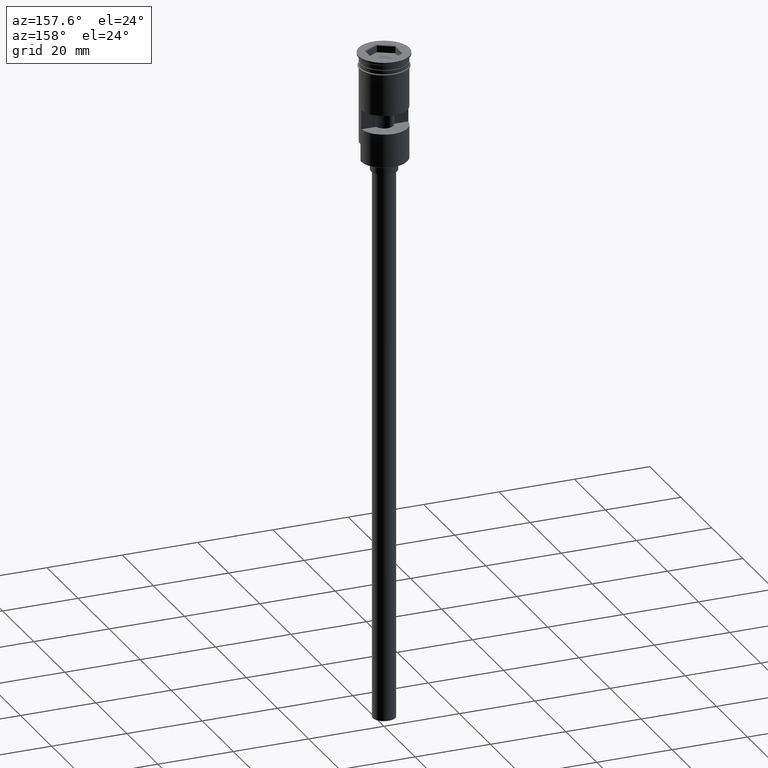
[diagram: clean part render]
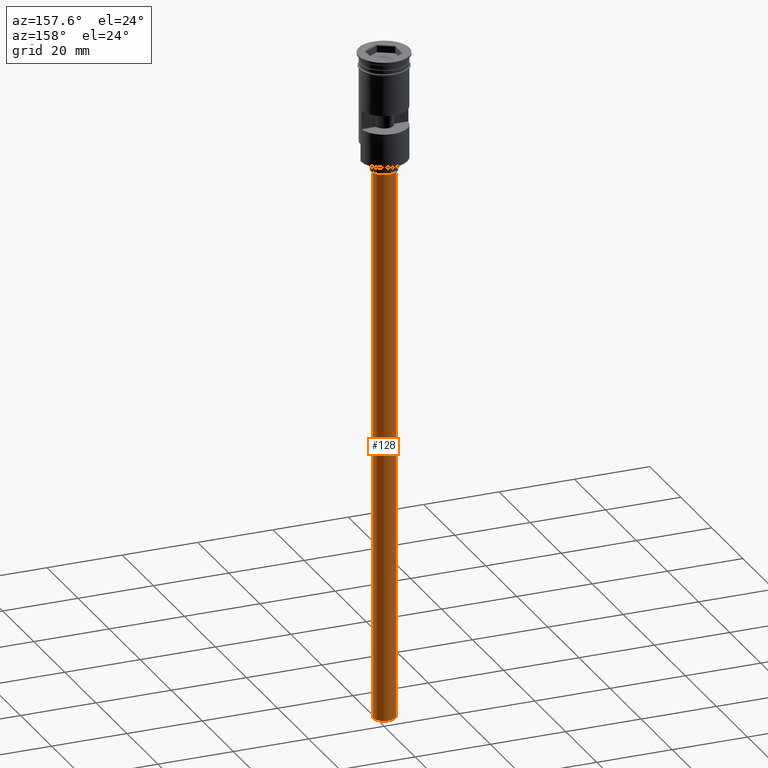
[diagram: same view with one face highlighted and labeled with its STEP entity id]
A machine part, auxiliary view. The second image highlights one B-rep face of the part: STEP entity #128.
In plain terms, the highlighted cylindrical surface (edge-blend (fillet) strip) has radius 3 mm, axis along (-0, -0, 1).
Its self-contained STEP definition (entity closure, byte-faithful):
#8 = CARTESIAN_POINT ( 'NONE',  ( 0.000000000000000000, 0.000000000000000000, -178.5000000000000000 ) ) ;
#35 = ORIENTED_EDGE ( 'NONE', *, *, #1269, .F. ) ;
#85 = CARTESIAN_POINT ( 'NONE',  ( 0.000000000000000000, 0.000000000000000000, -178.5000000000000000 ) ) ;
#128 = ADVANCED_FACE ( 'NONE', ( #248 ), #1468, .T. ) ;
#135 = CARTESIAN_POINT ( 'NONE',  ( 0.000000000000000000, 0.000000000000000000, -31.50000000000000000 ) ) ;
#183 = CARTESIAN_POINT ( 'NONE',  ( -3.000000000000000444, 3.673940397442060361E-16, -31.50000000000000000 ) ) ;
#184 = ORIENTED_EDGE ( 'NONE', *, *, #845, .T. ) ;
#210 = LINE ( 'NONE', #815, #626 ) ;
#247 = DIRECTION ( 'NONE',  ( -1.000000000000000000, 0.000000000000000000, 0.000000000000000000 ) ) ;
#248 = FACE_OUTER_BOUND ( 'NONE', #414, .T. ) ;
#279 = EDGE_CURVE ( 'NONE', #492, #420, #706, .T. ) ;
#371 = AXIS2_PLACEMENT_3D ( 'NONE', #8, #860, #494 ) ;
#414 = EDGE_LOOP ( 'NONE', ( #35, #184, #529, #572 ) ) ;
#420 = VERTEX_POINT ( 'NONE', #725 ) ;
#443 = DIRECTION ( 'NONE',  ( -1.000000000000000000, 0.000000000000000000, 0.000000000000000000 ) ) ;
#448 = DIRECTION ( 'NONE',  ( 0.000000000000000000, 0.000000000000000000, -1.000000000000000000 ) ) ;
#492 = VERTEX_POINT ( 'NONE', #747 ) ;
#494 = DIRECTION ( 'NONE',  ( 1.000000000000000000, 0.000000000000000000, 0.000000000000000000 ) ) ;
#521 = CARTESIAN_POINT ( 'NONE',  ( -3.000000000000000444, 3.673940397442060361E-16, -178.5000000000000000 ) ) ;
#529 = ORIENTED_EDGE ( 'NONE', *, *, #1025, .T. ) ;
#539 = CIRCLE ( 'NONE', #1422, 3.000000000000000444 ) ;
#545 = VERTEX_POINT ( 'NONE', #521 ) ;
#572 = ORIENTED_EDGE ( 'NONE', *, *, #279, .F. ) ;
#590 = DIRECTION ( 'NONE',  ( -0.000000000000000000, -0.000000000000000000, 1.000000000000000000 ) ) ;
#625 = VECTOR ( 'NONE', #1241, 1000.000000000000000 ) ;
#626 = VECTOR ( 'NONE', #590, 1000.000000000000000 ) ;
#694 = VERTEX_POINT ( 'NONE', #183 ) ;
#706 = LINE ( 'NONE', #1222, #625 ) ;
#725 = CARTESIAN_POINT ( 'NONE',  ( 3.000000000000000444, 0.000000000000000000, -31.50000000000000000 ) ) ;
#747 = CARTESIAN_POINT ( 'NONE',  ( 3.000000000000000444, 0.000000000000000000, -178.5000000000000000 ) ) ;
#815 = CARTESIAN_POINT ( 'NONE',  ( -3.000000000000000444, 3.673940397442060361E-16, -178.5000000000000000 ) ) ;
#845 = EDGE_CURVE ( 'NONE', #545, #694, #210, .T. ) ;
#860 = DIRECTION ( 'NONE',  ( -0.000000000000000000, -0.000000000000000000, 1.000000000000000000 ) ) ;
#928 = CIRCLE ( 'NONE', #1420, 3.000000000000000444 ) ;
#1025 = EDGE_CURVE ( 'NONE', #694, #420, #928, .T. ) ;
#1222 = CARTESIAN_POINT ( 'NONE',  ( 3.000000000000000444, 0.000000000000000000, -178.5000000000000000 ) ) ;
#1225 = DIRECTION ( 'NONE',  ( 0.000000000000000000, 0.000000000000000000, -1.000000000000000000 ) ) ;
#1241 = DIRECTION ( 'NONE',  ( -0.000000000000000000, -0.000000000000000000, 1.000000000000000000 ) ) ;
#1269 = EDGE_CURVE ( 'NONE', #545, #492, #539, .T. ) ;
#1420 = AXIS2_PLACEMENT_3D ( 'NONE', #135, #1225, #247 ) ;
#1422 = AXIS2_PLACEMENT_3D ( 'NONE', #85, #448, #443 ) ;
#1468 = CYLINDRICAL_SURFACE ( 'NONE', #371, 3.000000000000000444 ) ;